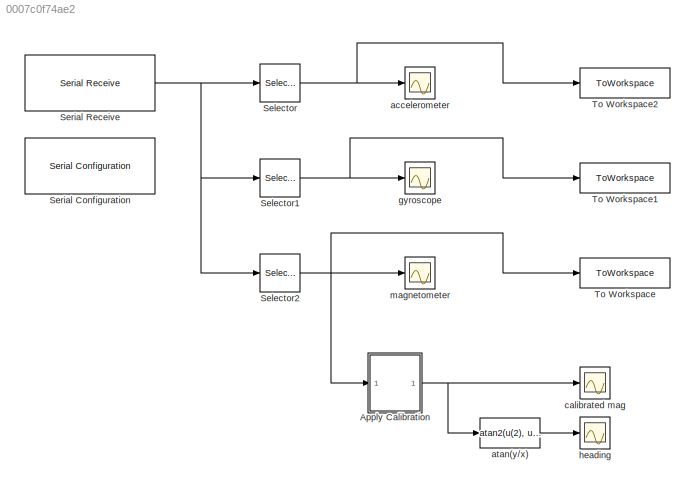
MODEL slx_0007c0f74ae2
KIND model
CONFIG AbsTol = auto
CONFIG EnableMultiTasking = off
CONFIG FixedStep = auto
CONFIG MaxStep = auto
CONFIG MinStep = auto
CONFIG RelTol = 1e-3
CONFIG SampleTimeConstraint = Unconstrained
CONFIG Solver = VariableStepAuto
CONFIG SolverName = VariableStepAuto
CONFIG StartTime = 0.0
CONFIG StopTime = inf
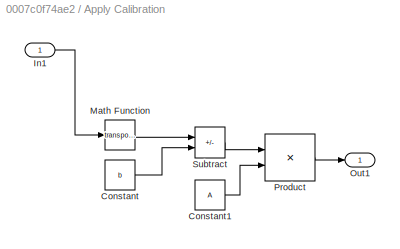
BLOCK [SubSystem] Apply Calibration
  Ports = [1, 1]
  RequestExecContextInheritance = off
BLOCK [Constant] Apply Calibration/Constant
  Value = b
  VectorParams1D = off
BLOCK [Constant] Apply Calibration/Constant1
  Value = A
  VectorParams1D = off
BLOCK [Inport] Apply Calibration/In1
BLOCK [Math] Apply Calibration/Math Function
  Operator = transpose
  Ports = [1, 1]
BLOCK [Outport] Apply Calibration/Out1
BLOCK [Product] Apply Calibration/Product
  Multiplication = Matrix(*)
  Ports = [2, 1]
BLOCK [Sum] Apply Calibration/Subtract
  IconShape = rectangular
  Inputs = +-
  Ports = [2, 1]
BLOCK [Selector] Selector
  IndexOptions = Select all,Index vector (dialog)
  Indices = [1 3],1
  InputPortWidth = 3
  NumberOfDimensions = 2
  OutputSizes = 1,1
  Ports = [1, 1]
BLOCK [Selector] Selector1
  IndexOptions = Select all,Index vector (dialog)
  Indices = [1 3],2
  InputPortWidth = 3
  NumberOfDimensions = 2
  OutputSizes = 1,1
  Ports = [1, 1]
BLOCK [Selector] Selector2
  IndexOptions = Select all,Index vector (dialog)
  Indices = [1 3],3
  InputPortWidth = 3
  NumberOfDimensions = 2
  OutputSizes = 1,1
  Ports = [1, 1]
BLOCK [Reference] Serial Configuration  REF=instrumentlib/Serial Configuration
  Ports = []
  Priority = -200000
  SourceBlock = instrumentlib/Serial Configuration
  SourceProductBaseCode = IC
  SourceType = Serial Configuration
BLOCK [Reference] Serial Receive  REF=instrumentlib/Serial Receive
  Ports = [0, 1]
  SourceBlock = instrumentlib/Serial Receive
  SourceProductBaseCode = IC
  SourceType = Serial Receive
BLOCK [ToWorkspace] To Workspace
  FixptAsFi = on
  MaxDataPoints = inf
  Ports = [1]
  SampleTime = -1
  VariableName = mag
BLOCK [ToWorkspace] To Workspace1
  FixptAsFi = on
  MaxDataPoints = inf
  Ports = [1]
  SampleTime = -1
  VariableName = gyro
BLOCK [ToWorkspace] To Workspace2
  FixptAsFi = on
  MaxDataPoints = inf
  Ports = [1]
  SampleTime = -1
  VariableName = acce
BLOCK [Scope] accelerometer
  Floating = off
  NumInputPorts = 1
  Ports = [1]
  ScopeSpecificationString = Simulink.scopes.TimeScopeBlockCfg('CurrentConfiguration', extmgr.ConfigurationSet(extmgr.Configuration('Core','General UI',true),extmgr.Configuration('Core','Source UI',true),extmgr.Configuration('Sources','WiredSimulink',true),extmgr.Configuration('Visuals','Time Domain',true,'SerializedDisplays',{struct('MinYLimReal','-4.0297','MaxYLimReal','11.81515','YLabelReal','','MinYLimMag','0.00000','MaxY...<+1399ch>
BLOCK [Fcn] atan(y//x)
  Expr = atan2(u(2), u(1))
BLOCK [Scope] calibrated mag
  Floating = off
  NumInputPorts = 1
  Ports = [1]
  ScopeSpecificationString = Simulink.scopes.TimeScopeBlockCfg('CurrentConfiguration', extmgr.ConfigurationSet(extmgr.Configuration('Core','General UI',true),extmgr.Configuration('Core','Source UI',true),extmgr.Configuration('Sources','WiredSimulink',true,'DataLoggingVariableName','ScopeData3'),extmgr.Configuration('Visuals','Time Domain',true,'SerializedDisplays',{struct('MinYLimReal','-94.50772','MaxYLimReal','225.4726','YL...<+1507ch>
BLOCK [Scope] gyroscope
  Floating = off
  NumInputPorts = 1
  Ports = [1]
  ScopeSpecificationString = Simulink.scopes.TimeScopeBlockCfg('CurrentConfiguration', extmgr.ConfigurationSet(extmgr.Configuration('Core','General UI',true),extmgr.Configuration('Core','Source UI',true),extmgr.Configuration('Sources','WiredSimulink',true,'DataLoggingVariableName','ScopeData1'),extmgr.Configuration('Visuals','Time Domain',true,'SerializedDisplays',{struct('MinYLimReal','-4.59781','MaxYLimReal','4.94829','YLab...<+1477ch>
BLOCK [Scope] heading
  Floating = off
  NumInputPorts = 1
  Ports = [1]
  ScopeSpecificationString = Simulink.scopes.TimeScopeBlockCfg('CurrentConfiguration', extmgr.ConfigurationSet(extmgr.Configuration('Core','General UI',true),extmgr.Configuration('Core','Source UI',true),extmgr.Configuration('Sources','WiredSimulink',true,'DataLoggingVariableName','ScopeData4'),extmgr.Configuration('Visuals','Time Domain',true,'SerializedDisplays',{struct('MinYLimReal','-0.75565','MaxYLimReal','-0.71656','YLa...<+1409ch>
BLOCK [Scope] magnetometer
  Floating = off
  NumInputPorts = 1
  Ports = [1]
  ScopeSpecificationString = Simulink.scopes.TimeScopeBlockCfg('CurrentConfiguration', extmgr.ConfigurationSet(extmgr.Configuration('Core','General UI',true),extmgr.Configuration('Core','Source UI',true),extmgr.Configuration('Sources','WiredSimulink',true,'DataLoggingVariableName','ScopeData2'),extmgr.Configuration('Visuals','Time Domain',true,'SerializedDisplays',{struct('MinYLimReal','-149.25','MaxYLimReal','233.25','YLabel...<+1473ch>
LINE Apply Calibration/Constant1:1 -> Apply Calibration/Product:2
LINE Apply Calibration/Constant:1 -> Apply Calibration/Subtract:2
LINE Apply Calibration/In1:1 -> Apply Calibration/Math Function:1
LINE Apply Calibration/Math Function:1 -> Apply Calibration/Subtract:1
LINE Apply Calibration/Product:1 -> Apply Calibration/Out1:1
LINE Apply Calibration/Subtract:1 -> Apply Calibration/Product:1
NET Apply Calibration:1 -> atan(y//x):1, calibrated mag:1
NET Selector1:1 -> To Workspace1:1, gyroscope:1
NET Selector2:1 -> Apply Calibration:1, To Workspace:1, magnetometer:1
NET Selector:1 -> To Workspace2:1, accelerometer:1
NET Serial Receive:1 -> Selector1:1, Selector2:1, Selector:1
LINE atan(y//x):1 -> heading:1
note: NET lines group one-source signal fan-out (src -> all destinations, sorted); 1:1 wires keep LINE
